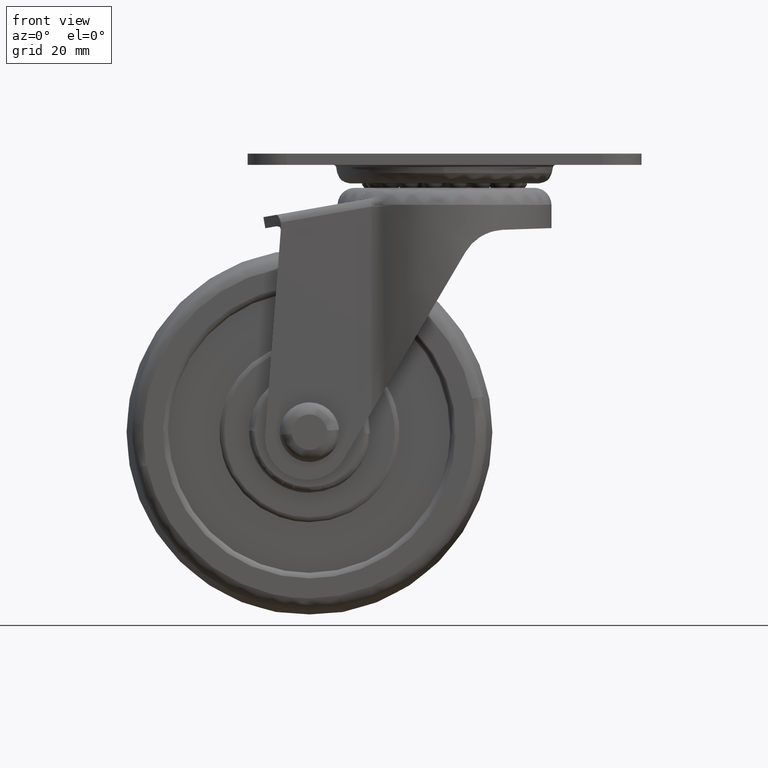
[diagram: clean part render]
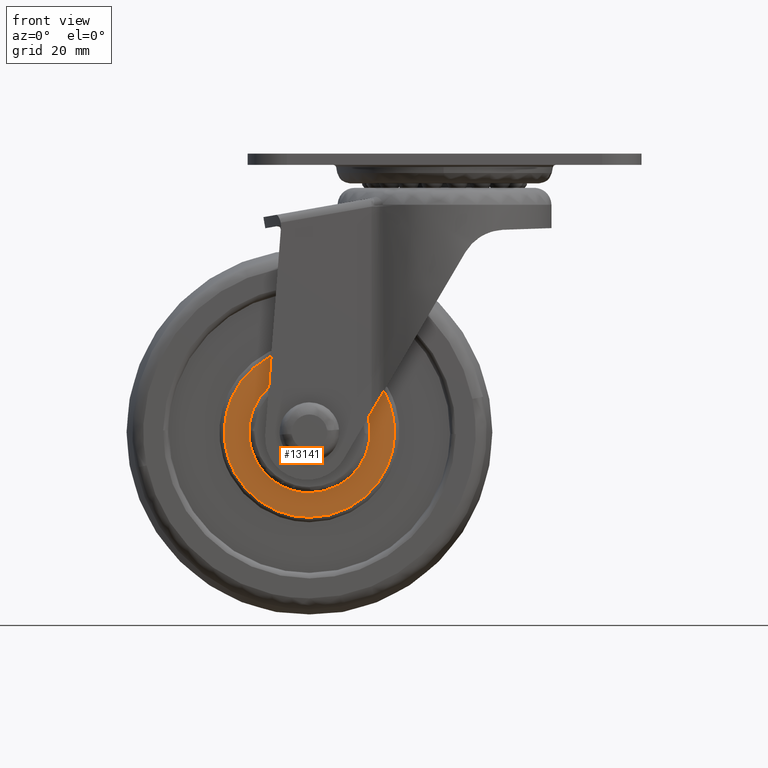
[diagram: same view with one face highlighted and labeled with its STEP entity id]
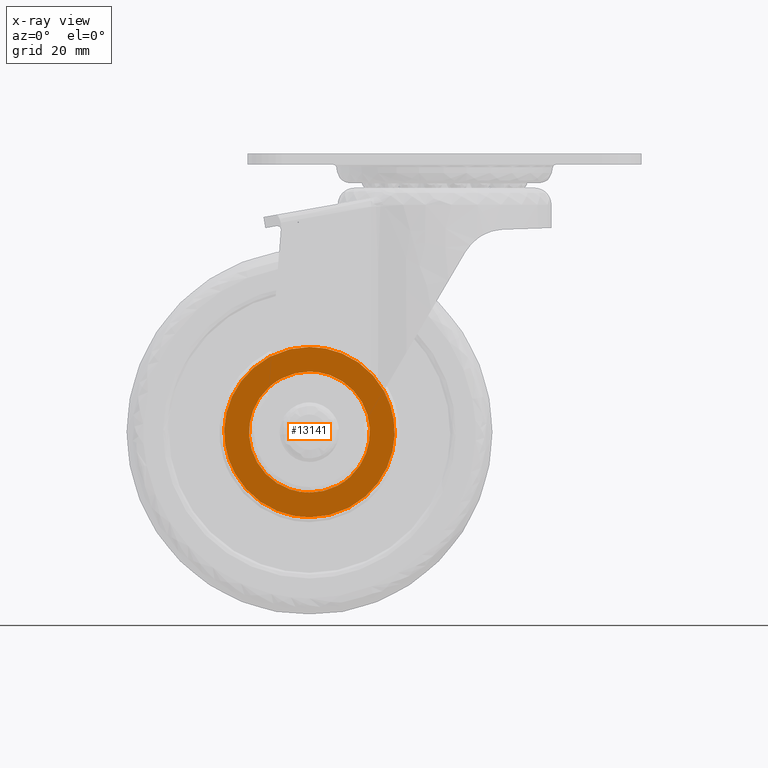
[diagram: x-ray of the same camera — body ghosted, the highlighted face saturated]
A machine part, front view. The second image highlights one B-rep face of the part: STEP entity #13141.
The next image is the same camera in x-ray: the body ghosted, the highlighted face saturated — about 0% of this face is hidden behind the body in this view.
In plain terms, the highlighted face is a freeform B-spline surface patch.
Its self-contained STEP definition (entity closure, byte-faithful):
#12939=CARTESIAN_POINT('',(-13.262003051835530,-10.0,-7.290847875592304));
#12940=VERTEX_POINT('',#12939);
#12941=CARTESIAN_POINT('',(0.0,-9.999999999999998,-15.133974596215550));
#12942=VERTEX_POINT('',#12941);
#12943=CARTESIAN_POINT('',(-13.262003051835531,-10.0,-7.290847875592306));
#12944=CARTESIAN_POINT('',(-8.950207634930685,-10.0,-15.133974601094103));
#12945=CARTESIAN_POINT('',(0.0,-9.999999999999998,-15.133974596215550));
#12953=(BOUNDED_CURVE()B_SPLINE_CURVE(2,(#12943,#12944,#12945),.UNSPECIFIED.,.F.,.U.)B_SPLINE_CURVE_WITH_KNOTS((3,3),(0.664101632214647,1.0),.UNSPECIFIED.)CURVE()GEOMETRIC_REPRESENTATION_ITEM()RATIONAL_B_SPLINE_CURVE((0.870842360842831,0.803235291730326,1.0))REPRESENTATION_ITEM(''));
#12954=EDGE_CURVE('',#12940,#12942,#12953,.T.);
#12971=CARTESIAN_POINT('',(13.262003051835530,-10.0,7.290847875592307));
#12972=VERTEX_POINT('',#12971);
#12986=CARTESIAN_POINT('',(0.0,-9.999999999999998,-15.133974596215550));
#12987=CARTESIAN_POINT('',(15.133974601463656,-9.999999999999998,-15.133974593330388));
#12988=CARTESIAN_POINT('',(15.133974610337710,-10.0,7.763724E-009));
#12989=CARTESIAN_POINT('',(15.133974612616175,-10.000000000000002,3.885744244448903));
#12990=CARTESIAN_POINT('',(13.262003051835531,-10.0,7.290847875592307));
#12998=(BOUNDED_CURVE()B_SPLINE_CURVE(2,(#12986,#12987,#12988,#12989,#12990),.UNSPECIFIED.,.F.,.U.)B_SPLINE_CURVE_WITH_KNOTS((3,2,3),(0.0,0.500000000000000,0.664101632214647),.UNSPECIFIED.)CURVE()GEOMETRIC_REPRESENTATION_ITEM()RATIONAL_B_SPLINE_CURVE((1.0,0.707106781186548,1.0,0.903871489456221,0.870842360842831))REPRESENTATION_ITEM(''));
#12999=EDGE_CURVE('',#12942,#12972,#12998,.T.);
#13027=CARTESIAN_POINT('',(0.0,-10.0,15.133974596215550));
#13028=VERTEX_POINT('',#13027);
#13029=CARTESIAN_POINT('',(0.0,-10.0,15.133974596215550));
#13030=CARTESIAN_POINT('',(-15.133974601463656,-10.000000000000002,15.133974593330388));
#13031=CARTESIAN_POINT('',(-15.133974610337710,-10.0,-7.763720E-009));
#13032=CARTESIAN_POINT('',(-15.133974612616175,-10.000000000000002,-3.885744244448900));
#13033=CARTESIAN_POINT('',(-13.262003051835531,-10.0,-7.290847875592306));
#13041=(BOUNDED_CURVE()B_SPLINE_CURVE(2,(#13029,#13030,#13031,#13032,#13033),.UNSPECIFIED.,.F.,.U.)B_SPLINE_CURVE_WITH_KNOTS((3,2,3),(0.0,0.500000000000000,0.664101632214647),.UNSPECIFIED.)CURVE()GEOMETRIC_REPRESENTATION_ITEM()RATIONAL_B_SPLINE_CURVE((1.0,0.707106781186548,1.0,0.903871489456221,0.870842360842831))REPRESENTATION_ITEM(''));
#13042=EDGE_CURVE('',#13028,#12940,#13041,.T.);
#13044=CARTESIAN_POINT('',(13.262003051835531,-10.0,7.290847875592307));
#13045=CARTESIAN_POINT('',(8.950207634930685,-10.0,15.133974601094115));
#13046=CARTESIAN_POINT('',(0.0,-10.0,15.133974596215550));
#13054=(BOUNDED_CURVE()B_SPLINE_CURVE(2,(#13044,#13045,#13046),.UNSPECIFIED.,.F.,.U.)B_SPLINE_CURVE_WITH_KNOTS((3,3),(0.664101632214647,1.0),.UNSPECIFIED.)CURVE()GEOMETRIC_REPRESENTATION_ITEM()RATIONAL_B_SPLINE_CURVE((0.870842360842831,0.803235291730326,1.0))REPRESENTATION_ITEM(''));
#13055=EDGE_CURVE('',#12972,#13028,#13054,.T.);
#13064=CARTESIAN_POINT('',(-16.642901308393689,-10.0,-16.645858599712330));
#13065=CARTESIAN_POINT('',(-16.642901308393689,-10.0,16.645859411561990));
#13066=CARTESIAN_POINT('',(16.642900767227289,-10.0,-16.645858599712330));
#13067=CARTESIAN_POINT('',(16.642900767227289,-10.0,16.645859411561990));
#13068=B_SPLINE_SURFACE_WITH_KNOTS('',1,1,((#13064,#13066),(#13065,#13067)),.UNSPECIFIED.,.F.,.F.,.U.,(2,2),(2,2),(0.0,33.291718011274313),(0.0,33.285802075620978),.UNSPECIFIED.);
#13069=ORIENTED_EDGE('',*,*,#13042,.T.);
#13070=ORIENTED_EDGE('',*,*,#12954,.T.);
#13071=ORIENTED_EDGE('',*,*,#12999,.T.);
#13072=ORIENTED_EDGE('',*,*,#13055,.T.);
#13073=EDGE_LOOP('',(#13069,#13070,#13071,#13072));
#13074=FACE_OUTER_BOUND('',#13073,.T.);
#13075=CARTESIAN_POINT('',(0.0,-10.0,10.750000000000000));
#13076=VERTEX_POINT('',#13075);
#13077=CARTESIAN_POINT('',(-7.262593333396724,-10.0,7.925732652171522));
#13078=VERTEX_POINT('',#13077);
#13079=CARTESIAN_POINT('',(0.0,-10.0,10.750000000000000));
#13080=CARTESIAN_POINT('',(-4.180445275593383,-10.0,10.750000000000000));
#13081=CARTESIAN_POINT('',(-7.262593333396839,-9.999999999999998,7.925732652171647));
#13089=(BOUNDED_CURVE()B_SPLINE_CURVE(2,(#13079,#13080,#13081),.UNSPECIFIED.,.F.,.U.)B_SPLINE_CURVE_WITH_KNOTS((3,3),(0.500000000000000,0.618415182447602),.UNSPECIFIED.)CURVE()GEOMETRIC_REPRESENTATION_ITEM()RATIONAL_B_SPLINE_CURVE((1.0,0.861267984226159,0.853959784125781))REPRESENTATION_ITEM(''));
#13090=EDGE_CURVE('',#13076,#13078,#13089,.T.);
#13091=ORIENTED_EDGE('',*,*,#13090,.F.);
#13092=CARTESIAN_POINT('',(7.262593333396724,-10.0,-7.925732652171519));
#13093=VERTEX_POINT('',#13092);
#13094=CARTESIAN_POINT('',(7.262593333396725,-9.999999999999998,-7.925732652171519));
#13095=CARTESIAN_POINT('',(10.749999999999998,-10.0,-4.730114339109310));
#13096=CARTESIAN_POINT('',(10.750000000000000,-10.0,1.628608E-015));
#13097=CARTESIAN_POINT('',(10.750000000000000,-10.000000000000002,10.750000000000000));
#13098=CARTESIAN_POINT('',(0.0,-10.0,10.750000000000000));
#13106=(BOUNDED_CURVE()B_SPLINE_CURVE(2,(#13094,#13095,#13096,#13097,#13098),.UNSPECIFIED.,.F.,.U.)B_SPLINE_CURVE_WITH_KNOTS((3,2,3),(0.118415182447602,0.250000000000000,0.500000000000000),.UNSPECIFIED.)CURVE()GEOMETRIC_REPRESENTATION_ITEM()RATIONAL_B_SPLINE_CURVE((0.853959784125781,0.845838796960389,1.0,0.707106781186548,1.0))REPRESENTATION_ITEM(''));
#13107=EDGE_CURVE('',#13093,#13076,#13106,.T.);
#13108=ORIENTED_EDGE('',*,*,#13107,.F.);
#13109=CARTESIAN_POINT('',(0.0,-10.0,-10.750000000000000));
#13110=VERTEX_POINT('',#13109);
#13111=CARTESIAN_POINT('',(0.0,-10.0,-10.750000000000000));
#13112=CARTESIAN_POINT('',(4.180445275593383,-9.999999999999998,-10.749999999999998));
#13113=CARTESIAN_POINT('',(7.262593333396839,-9.999999999999998,-7.925732652171644));
#13121=(BOUNDED_CURVE()B_SPLINE_CURVE(2,(#13111,#13112,#13113),.UNSPECIFIED.,.F.,.U.)B_SPLINE_CURVE_WITH_KNOTS((3,3),(0.0,0.118415182447602),.UNSPECIFIED.)CURVE()GEOMETRIC_REPRESENTATION_ITEM()RATIONAL_B_SPLINE_CURVE((1.0,0.861267984226159,0.853959784125781))REPRESENTATION_ITEM(''));
#13122=EDGE_CURVE('',#13110,#13093,#13121,.T.);
#13123=ORIENTED_EDGE('',*,*,#13122,.F.);
#13124=CARTESIAN_POINT('',(-7.262593333396725,-9.999999999999998,7.925732652171523));
#13125=CARTESIAN_POINT('',(-10.749999999999998,-9.999999999999998,4.730114339109313));
#13126=CARTESIAN_POINT('',(-10.750000000000000,-10.0,1.628608E-015));
#13127=CARTESIAN_POINT('',(-10.750000000000000,-10.000000000000002,-10.749999999999998));
#13128=CARTESIAN_POINT('',(0.0,-10.0,-10.750000000000000));
#13136=(BOUNDED_CURVE()B_SPLINE_CURVE(2,(#13124,#13125,#13126,#13127,#13128),.UNSPECIFIED.,.F.,.U.)B_SPLINE_CURVE_WITH_KNOTS((3,2,3),(0.618415182447602,0.750000000000000,1.0),.UNSPECIFIED.)CURVE()GEOMETRIC_REPRESENTATION_ITEM()RATIONAL_B_SPLINE_CURVE((0.853959784125781,0.845838796960389,1.0,0.707106781186548,1.0))REPRESENTATION_ITEM(''));
#13137=EDGE_CURVE('',#13078,#13110,#13136,.T.);
#13138=ORIENTED_EDGE('',*,*,#13137,.F.);
#13139=EDGE_LOOP('',(#13091,#13108,#13123,#13138));
#13140=FACE_BOUND('',#13139,.T.);
#13141=ADVANCED_FACE('',(#13074,#13140),#13068,.F.);